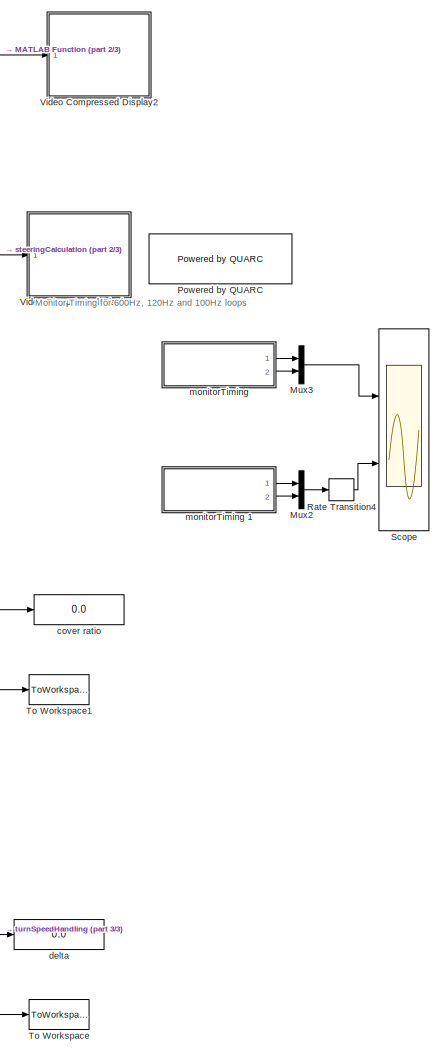
[diagram: root canvas - part 1/3, right side, full height]
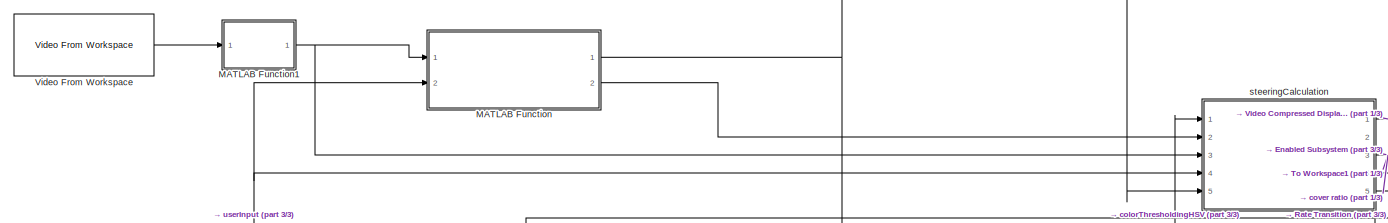
[diagram: root canvas - part 2/3, top center region]
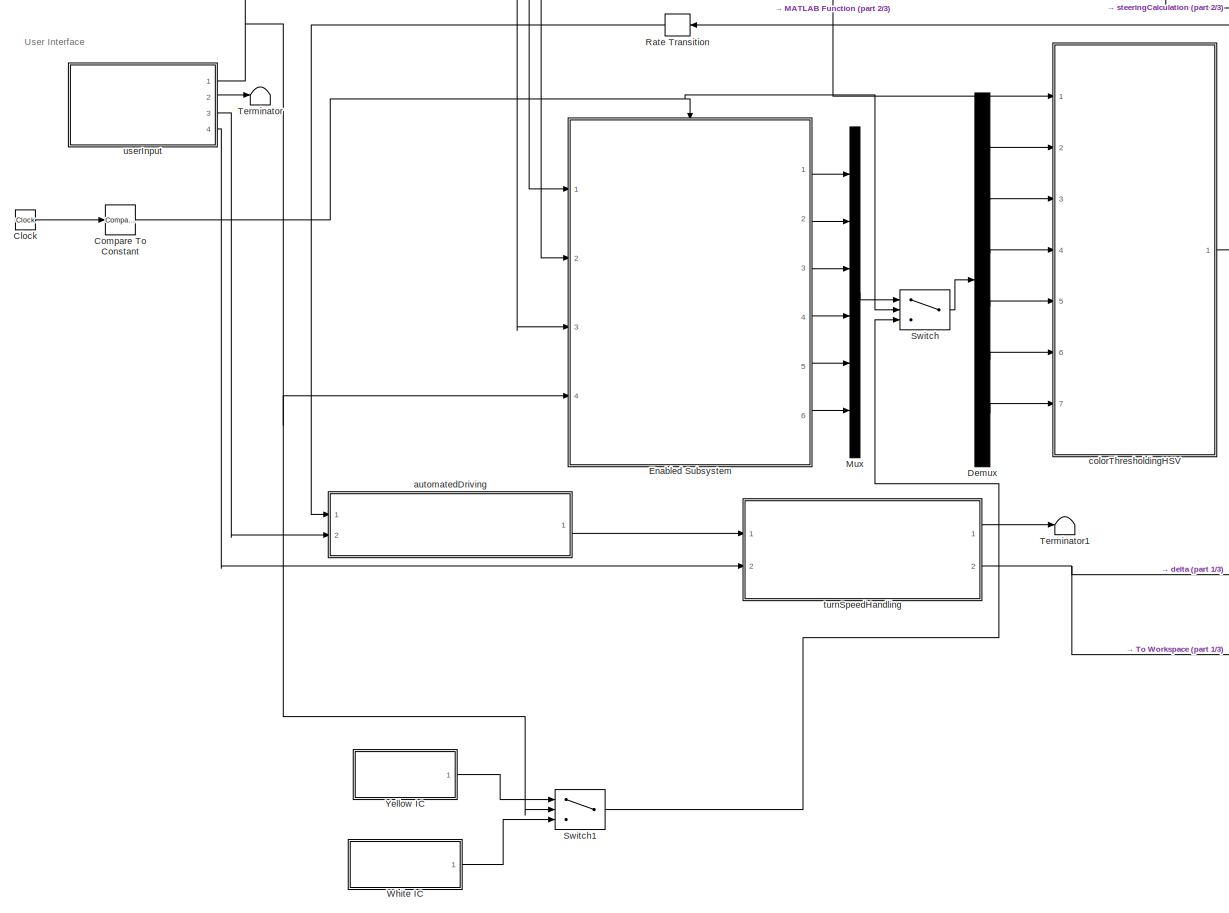
[diagram: root canvas - part 3/3, middle left region]
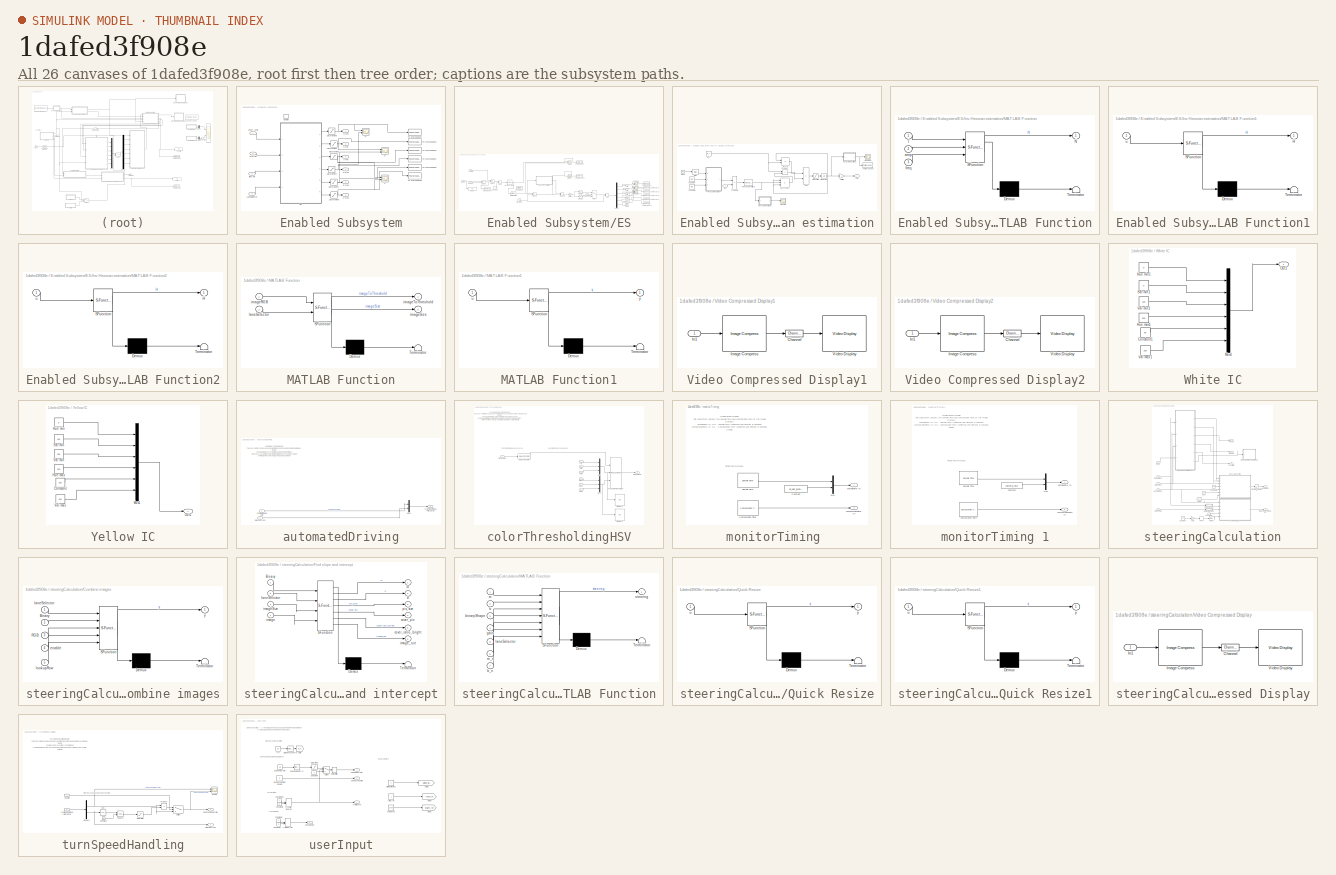
[diagram: thumbnail index - all 26 canvases of the model, root first then tree order]
MODEL slx_1dafed3f908e
KIND model
CONFIG AbsTol = auto
CONFIG EnableMultiTasking = off
CONFIG FixedStep = 1/120
CONFIG MaxStep = auto
CONFIG MinStep = auto
CONFIG RelTol = 1e-3
CONFIG SampleTimeConstraint = Unconstrained
CONFIG Solver = ode2
CONFIG SolverName = ode2
CONFIG StartTime = 0.0
CONFIG StopTime = 100
WORKSPACE source: mxarray member
WORKSPACE camera_rate: Simulink.Parameter (value not decoded)
WORKSPACE depth_rate: Simulink.Parameter (value not decoded)
BLOCK [Clock] Clock
BLOCK [Reference] Compare To Constant  REF=simulink/Logic and Bit
Operations/Compare
To Constant
  Ports = [1, 1]
  SourceBlock = simulink/Logic and Bit\nOperations/Compare\nTo Constant
  SourceProductBaseCode = SL
  SourceType = Compare To Constant
BLOCK [Demux] Demux
  Outputs = 6
  Ports = [1, 6]
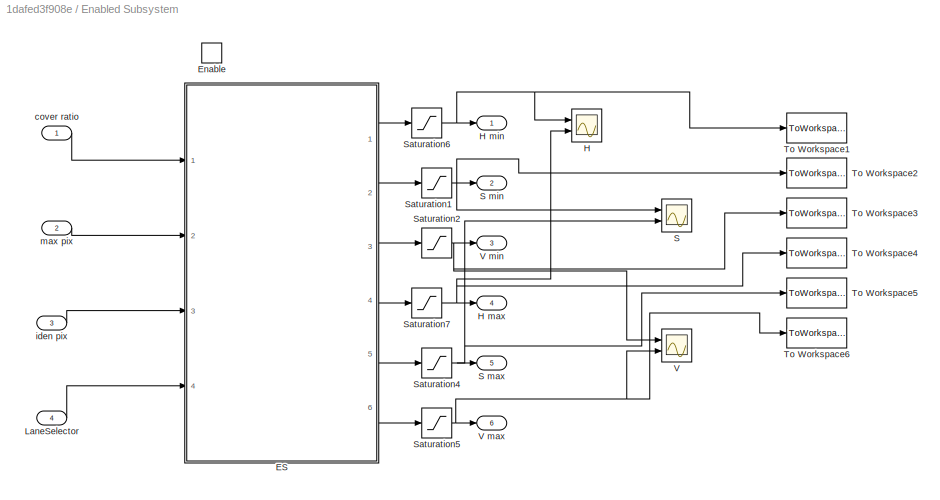
BLOCK [SubSystem] Enabled Subsystem
  Ports = [4, 6, 1]
  RequestExecContextInheritance = off
  TreatAsAtomicUnit = on
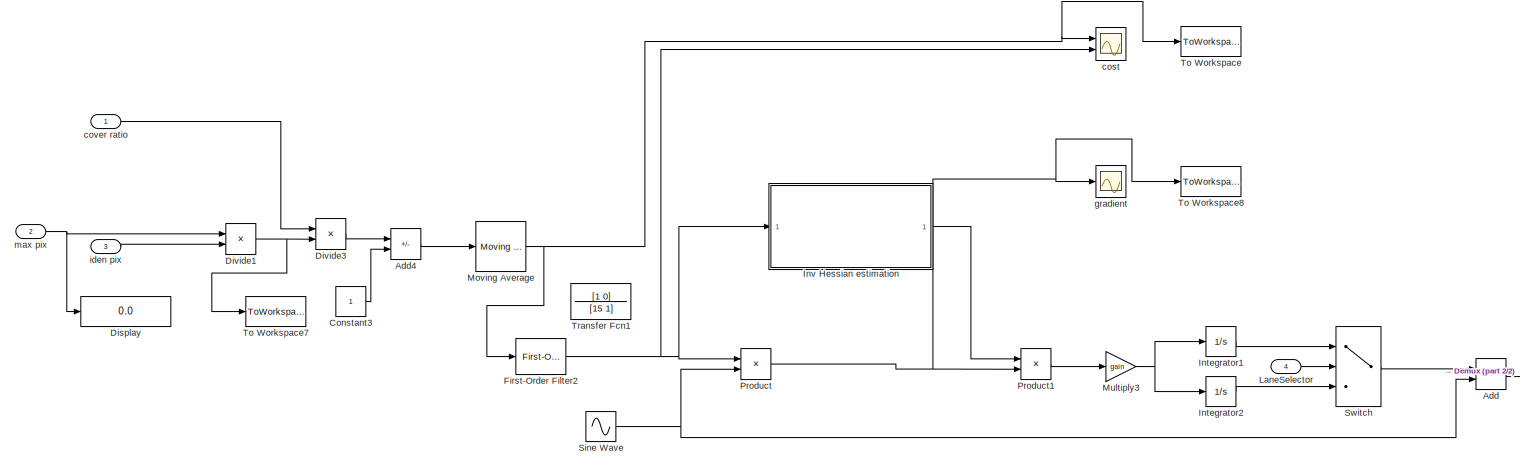
[diagram: Enabled Subsystem/ES - part 1/2, most of the canvas]
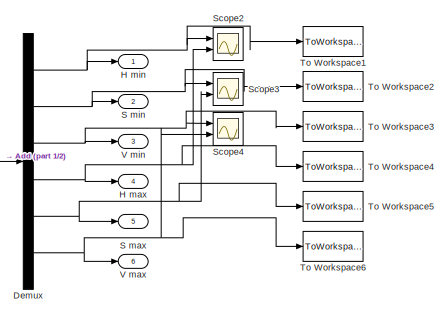
[diagram: Enabled Subsystem/ES - part 2/2, bottom right region]
BLOCK [SubSystem] Enabled Subsystem/ES
  Ports = [4, 6]
  RequestExecContextInheritance = off
BLOCK [Sum] Enabled Subsystem/ES/Add
  IconShape = rectangular
  Ports = [2, 1]
BLOCK [Sum] Enabled Subsystem/ES/Add4
  IconShape = rectangular
  Inputs = -+
  Ports = [2, 1]
BLOCK [Constant] Enabled Subsystem/ES/Constant3
BLOCK [Demux] Enabled Subsystem/ES/Demux
  Outputs = 6
  Ports = [1, 6]
BLOCK [Display] Enabled Subsystem/ES/Display
  Decimation = 1
  Ports = [1]
BLOCK [Product] Enabled Subsystem/ES/Divide1
  Inputs = /*
  Ports = [2, 1]
BLOCK [Product] Enabled Subsystem/ES/Divide3
  Inputs = **
  Ports = [2, 1]
BLOCK [Reference] Enabled Subsystem/ES/First-Order Filter2  REF=powerlib_meascontrol/Filters/First-Order
Filter
  Ports = [1, 1]
  SourceBlock = powerlib_meascontrol/Filters/First-Order\nFilter
  SourceProductBaseCode = PS
  SourceType = First-Order Filter
BLOCK [Outport] Enabled Subsystem/ES/H max
  Port = 4
  VectorParamsAs1DForOutWhenUnconnected = off
BLOCK [Outport] Enabled Subsystem/ES/H min
  VectorParamsAs1DForOutWhenUnconnected = off
BLOCK [Integrator] Enabled Subsystem/ES/Integrator1
  InitialCondition = [0;100;150;100;255;255]
  LowerSaturationLimit = 0
  Ports = [1, 1]
  UpperSaturationLimit = 255
BLOCK [Integrator] Enabled Subsystem/ES/Integrator2
  InitialCondition = [0;0;150;255;50;255]
  LowerSaturationLimit = 0
  Ports = [1, 1]
  UpperSaturationLimit = 255
BLOCK [SubSystem] Enabled Subsystem/ES/Inv Hessian estimation
  Ports = [1, 1]
  RequestExecContextInheritance = off
BLOCK [Sum] Enabled Subsystem/ES/Inv Hessian estimation/Add
  IconShape = rectangular
  Inputs = +-
  Ports = [2, 1]
BLOCK [Bias] Enabled Subsystem/ES/Inv Hessian estimation/Bias
  Bias = -15
  SaturateOnIntegerOverflow = off
BLOCK [Clock] Enabled Subsystem/ES/Inv Hessian estimation/Clock
  Decimation = 100
BLOCK [Constant] Enabled Subsystem/ES/Inv Hessian estimation/Constant
  Value = amp
BLOCK [Constant] Enabled Subsystem/ES/Inv Hessian estimation/Constant1
  Value = freq
BLOCK [Reference] Enabled Subsystem/ES/Inv Hessian estimation/First-Order Filter2  REF=powerlib_meascontrol/Filters/First-Order
Filter
  Ports = [1, 1]
  SourceBlock = powerlib_meascontrol/Filters/First-Order\nFilter
  SourceProductBaseCode = PS
  SourceType = First-Order Filter
BLOCK [Scope] Enabled Subsystem/ES/Inv Hessian estimation/Hessian
  Floating = off
  NumInputPorts = 1
  Ports = [1]
  ScopeSpecificationString = Simulink.scopes.TimeScopeBlockCfg('CurrentConfiguration', extmgr.ConfigurationSet(extmgr.Configuration('Core','General UI',true),extmgr.Configuration('Core','Source UI',true),extmgr.Configuration('Sources','WiredSimulink',true,'DataLoggingVariableName','ScopeData2'),extmgr.Configuration('Visuals','Time Domain',true,'SerializedDisplays',{struct('MinYLimReal','-0.86264','MaxYLimReal','0.20379','YLab...<+1720ch>
BLOCK [Scope] Enabled Subsystem/ES/Inv Hessian estimation/Hessian1
  Floating = off
  NumInputPorts = 1
  Ports = [1]
  ScopeSpecificationString = Simulink.scopes.TimeScopeBlockCfg('CurrentConfiguration', extmgr.ConfigurationSet(extmgr.Configuration('Core','General UI',true),extmgr.Configuration('Core','Source UI',true),extmgr.Configuration('Sources','WiredSimulink',true,'DataLoggingVariableName','ScopeData1'),extmgr.Configuration('Visuals','Time Domain',true,'SerializedDisplays',{struct('MinYLimReal','0.06838','MaxYLimReal','1.10351','YLabe...<+1715ch>
BLOCK [Inport] Enabled Subsystem/ES/Inv Hessian estimation/In1
BLOCK [Integrator] Enabled Subsystem/ES/Inv Hessian estimation/Integrator
  InitialCondition = IC
  Ports = [1, 1]
BLOCK [SubSystem] Enabled Subsystem/ES/Inv Hessian estimation/MATLAB Function
  ErrorFcn = Stateflow.Translate.translate
  PermitHierarchicalResolution = ExplicitOnly
  Ports = [3, 1]
  RequestExecContextInheritance = off
  SFBlockType = MATLAB Function
  TreatAsAtomicUnit = on
BLOCK [Demux] Enabled Subsystem/ES/Inv Hessian estimation/MATLAB Function/ Demux 
  Outputs = 1
  Ports = [1, 1]
BLOCK [S-Function] Enabled Subsystem/ES/Inv Hessian estimation/MATLAB Function/ SFunction 
  EnableBusSupport = on
  FunctionName = sf_sfun
  PortCounts = [3 2]
  Ports = [3, 2]
  SFcnIsStateOwnerBlock = off
  SFunctionDeploymentMode = off
  Tag = Stateflow S-Function 1
BLOCK [Terminator] Enabled Subsystem/ES/Inv Hessian estimation/MATLAB Function/ Terminator 
BLOCK [Outport] Enabled Subsystem/ES/Inv Hessian estimation/MATLAB Function/N
  VectorParamsAs1DForOutWhenUnconnected = off
BLOCK [Inport] Enabled Subsystem/ES/Inv Hessian estimation/MATLAB Function/amp
  Port = 2
BLOCK [Inport] Enabled Subsystem/ES/Inv Hessian estimation/MATLAB Function/freq
  Port = 3
BLOCK [Inport] Enabled Subsystem/ES/Inv Hessian estimation/MATLAB Function/t
BLOCK [SubSystem] Enabled Subsystem/ES/Inv Hessian estimation/MATLAB Function1
  ErrorFcn = Stateflow.Translate.translate
  PermitHierarchicalResolution = ExplicitOnly
  Ports = [1, 1]
  RequestExecContextInheritance = off
  SFBlockType = MATLAB Function
  TreatAsAtomicUnit = on
BLOCK [Demux] Enabled Subsystem/ES/Inv Hessian estimation/MATLAB Function1/ Demux 
  Outputs = 1
  Ports = [1, 1]
BLOCK [S-Function] Enabled Subsystem/ES/Inv Hessian estimation/MATLAB Function1/ SFunction 
  EnableBusSupport = on
  FunctionName = sf_sfun
  PortCounts = [1 2]
  Ports = [1, 2]
  SFcnIsStateOwnerBlock = off
  SFunctionDeploymentMode = off
  Tag = Stateflow S-Function 3
BLOCK [Terminator] Enabled Subsystem/ES/Inv Hessian estimation/MATLAB Function1/ Terminator 
BLOCK [Outport] Enabled Subsystem/ES/Inv Hessian estimation/MATLAB Function1/H
  VectorParamsAs1DForOutWhenUnconnected = off
BLOCK [Inport] Enabled Subsystem/ES/Inv Hessian estimation/MATLAB Function1/u
BLOCK [SubSystem] Enabled Subsystem/ES/Inv Hessian estimation/MATLAB Function2
  ErrorFcn = Stateflow.Translate.translate
  PermitHierarchicalResolution = ExplicitOnly
  Ports = [1, 1]
  RequestExecContextInheritance = off
  SFBlockType = MATLAB Function
  TreatAsAtomicUnit = on
BLOCK [Demux] Enabled Subsystem/ES/Inv Hessian estimation/MATLAB Function2/ Demux 
  Outputs = 1
  Ports = [1, 1]
BLOCK [S-Function] Enabled Subsystem/ES/Inv Hessian estimation/MATLAB Function2/ SFunction 
  EnableBusSupport = on
  FunctionName = sf_sfun
  PortCounts = [1 2]
  Ports = [1, 2]
  SFcnIsStateOwnerBlock = off
  SFunctionDeploymentMode = off
  Tag = Stateflow S-Function 8
BLOCK [Terminator] Enabled Subsystem/ES/Inv Hessian estimation/MATLAB Function2/ Terminator 
BLOCK [Outport] Enabled Subsystem/ES/Inv Hessian estimation/MATLAB Function2/H
  VectorParamsAs1DForOutWhenUnconnected = off
BLOCK [Inport] Enabled Subsystem/ES/Inv Hessian estimation/MATLAB Function2/u
BLOCK [Gain] Enabled Subsystem/ES/Inv Hessian estimation/Multiply
  Gain = -1
BLOCK [Outport] Enabled Subsystem/ES/Inv Hessian estimation/Out1
  VectorParamsAs1DForOutWhenUnconnected = off
BLOCK [Product] Enabled Subsystem/ES/Inv Hessian estimation/Product
  Ports = [2, 1]
BLOCK [Product] Enabled Subsystem/ES/Inv Hessian estimation/Product2
  Ports = [2, 1]
BLOCK [Saturate] Enabled Subsystem/ES/Inv Hessian estimation/Saturation
  LowerLimit = -10000
  UpperLimit = 10000
BLOCK [ToWorkspace] Enabled Subsystem/ES/Inv Hessian estimation/To Workspace
  FixptAsFi = on
  MaxDataPoints = inf
  Ports = [1]
  SampleTime = -1
  SaveFormat = Timeseries
  VariableName = Hessian
BLOCK [Constant] Enabled Subsystem/ES/Inv Hessian estimation/w_r 
  Value = w_r
BLOCK [Product] Enabled Subsystem/ES/Inv Hessian estimation/w_r*T
  Ports = [2, 1]
BLOCK [Product] Enabled Subsystem/ES/Inv Hessian estimation/w_r*T*H*T
  Inputs = 3
  Multiplication = Matrix(*)
  Ports = [3, 1]
BLOCK [Inport] Enabled Subsystem/ES/LaneSelector
  Port = 4
BLOCK [Reference] Enabled Subsystem/ES/Moving Average  REF=dspstat3/Moving
Average
  Ports = [1, 1]
  SourceBlock = dspstat3/Moving\nAverage
  SourceProductBaseCode = DS
  SourceType = dsp.simulink.MovingAverage
BLOCK [Gain] Enabled Subsystem/ES/Multiply3
  Gain = gain
BLOCK [Product] Enabled Subsystem/ES/Product
  Ports = [2, 1]
BLOCK [Product] Enabled Subsystem/ES/Product1
  Multiplication = Matrix(*)
  Ports = [2, 1]
BLOCK [Outport] Enabled Subsystem/ES/S max
  Port = 5
  VectorParamsAs1DForOutWhenUnconnected = off
BLOCK [Outport] Enabled Subsystem/ES/S min
  Port = 2
  VectorParamsAs1DForOutWhenUnconnected = off
BLOCK [Scope] Enabled Subsystem/ES/Scope2
  Floating = off
  NumInputPorts = 2
  Ports = [2]
  ScopeSpecificationString = Simulink.scopes.TimeScopeBlockCfg('CurrentConfiguration', extmgr.ConfigurationSet(extmgr.Configuration('Core','General UI',true),extmgr.Configuration('Core','Source UI',true),extmgr.Configuration('Sources','WiredSimulink',true,'DataLoggingVariableName','ScopeData1'),extmgr.Configuration('Visuals','Time Domain',true,'SerializedDisplays',{struct('MinYLimReal','-1947.39724','MaxYLimReal','853.01055',...<+1539ch>
BLOCK [Scope] Enabled Subsystem/ES/Scope3
  Floating = off
  NumInputPorts = 2
  Ports = [2]
  ScopeSpecificationString = Simulink.scopes.TimeScopeBlockCfg('CurrentConfiguration', extmgr.ConfigurationSet(extmgr.Configuration('Core','General UI',true),extmgr.Configuration('Core','Source UI',true),extmgr.Configuration('Sources','WiredSimulink',true,'DataLoggingVariableName','ScopeData2'),extmgr.Configuration('Visuals','Time Domain',true,'SerializedDisplays',{struct('MinYLimReal','-646.49377','MaxYLimReal','897.72191','...<+1489ch>
BLOCK [Scope] Enabled Subsystem/ES/Scope4
  Floating = off
  NumInputPorts = 2
  Ports = [2]
  ScopeSpecificationString = Simulink.scopes.TimeScopeBlockCfg('CurrentConfiguration', extmgr.ConfigurationSet(extmgr.Configuration('Core','General UI',true),extmgr.Configuration('Core','Source UI',true),extmgr.Configuration('Sources','WiredSimulink',true,'DataLoggingVariableName','ScopeData3'),extmgr.Configuration('Visuals','Time Domain',true,'SerializedDisplays',{struct('MinYLimReal','113.66565','MaxYLimReal','331.58352','Y...<+1488ch>
BLOCK [Sin] Enabled Subsystem/ES/Sine Wave
  Amplitude = amp
  Frequency = freq
  Ports = [0, 1]
  SampleTime = 0
BLOCK [Switch] Enabled Subsystem/ES/Switch
  Criteria = u2 > Threshold
  InputSameDT = off
  SaturateOnIntegerOverflow = off
BLOCK [ToWorkspace] Enabled Subsystem/ES/To Workspace
  FixptAsFi = on
  MaxDataPoints = inf
  Ports = [1]
  SampleTime = -1
  SaveFormat = Timeseries
  VariableName = cost_fcn
BLOCK [ToWorkspace] Enabled Subsystem/ES/To Workspace1
  Commented = on
  FixptAsFi = on
  MaxDataPoints = inf
  Ports = [1]
  SampleTime = -1
  Save2DSignal = 2-D array (concatenate along first dimension)
  VariableName = H_min
BLOCK [ToWorkspace] Enabled Subsystem/ES/To Workspace2
  Commented = on
  FixptAsFi = on
  MaxDataPoints = inf
  Ports = [1]
  SampleTime = -1
  Save2DSignal = 2-D array (concatenate along first dimension)
  VariableName = S_min
BLOCK [ToWorkspace] Enabled Subsystem/ES/To Workspace3
  Commented = on
  FixptAsFi = on
  MaxDataPoints = inf
  Ports = [1]
  SampleTime = -1
  Save2DSignal = 2-D array (concatenate along first dimension)
  VariableName = V_min
BLOCK [ToWorkspace] Enabled Subsystem/ES/To Workspace4
  Commented = on
  FixptAsFi = on
  MaxDataPoints = inf
  Ports = [1]
  SampleTime = -1
  Save2DSignal = 2-D array (concatenate along first dimension)
  VariableName = H_max
BLOCK [ToWorkspace] Enabled Subsystem/ES/To Workspace5
  Commented = on
  FixptAsFi = on
  MaxDataPoints = inf
  Ports = [1]
  SampleTime = -1
  Save2DSignal = 2-D array (concatenate along first dimension)
  VariableName = S_max
BLOCK [ToWorkspace] Enabled Subsystem/ES/To Workspace6
  Commented = on
  FixptAsFi = on
  MaxDataPoints = inf
  Ports = [1]
  SampleTime = -1
  Save2DSignal = 2-D array (concatenate along first dimension)
  VariableName = V_max
BLOCK [ToWorkspace] Enabled Subsystem/ES/To Workspace7
  FixptAsFi = on
  MaxDataPoints = inf
  Ports = [1]
  SampleTime = -1
  SaveFormat = Structure With Time
  VariableName = pix_ratio
BLOCK [ToWorkspace] Enabled Subsystem/ES/To Workspace8
  FixptAsFi = on
  MaxDataPoints = inf
  Ports = [1]
  SampleTime = -1
  SaveFormat = Timeseries
  VariableName = gradient
BLOCK [TransferFcn] Enabled Subsystem/ES/Transfer Fcn1
  Denominator = [15 1]
  Numerator = [1 0]
BLOCK [Outport] Enabled Subsystem/ES/V max
  Port = 6
  VectorParamsAs1DForOutWhenUnconnected = off
BLOCK [Outport] Enabled Subsystem/ES/V min
  Port = 3
  VectorParamsAs1DForOutWhenUnconnected = off
BLOCK [Scope] Enabled Subsystem/ES/cost
  Floating = off
  NumInputPorts = 2
  Ports = [2]
  ScopeSpecificationString = Simulink.scopes.TimeScopeBlockCfg('CurrentConfiguration', extmgr.ConfigurationSet(extmgr.Configuration('Core','General UI',true),extmgr.Configuration('Core','Source UI',true),extmgr.Configuration('Sources','WiredSimulink',true,'DataLoggingVariableName','ScopeData1'),extmgr.Configuration('Visuals','Time Domain',true,'SerializedDisplays',{struct('MinYLimReal','-0.12031','MaxYLimReal','1.12448','YLab...<+1449ch>
BLOCK [Inport] Enabled Subsystem/ES/cover ratio 
BLOCK [Scope] Enabled Subsystem/ES/gradient
  Floating = off
  NumInputPorts = 1
  Ports = [1]
  ScopeSpecificationString = Simulink.scopes.TimeScopeBlockCfg('CurrentConfiguration', extmgr.ConfigurationSet(extmgr.Configuration('Core','General UI',true),extmgr.Configuration('Core','Source UI',true),extmgr.Configuration('Sources','WiredSimulink',true,'DataLoggingVariableName','ScopeData3'),extmgr.Configuration('Visuals','Time Domain',true,'SerializedDisplays',{struct('MinYLimReal','-1.52251','MaxYLimReal','2.79316','YLab...<+1618ch>
BLOCK [Inport] Enabled Subsystem/ES/iden pix
  Port = 3
BLOCK [Inport] Enabled Subsystem/ES/max pix 
  Port = 2
BLOCK [EnablePort] Enabled Subsystem/Enable
  Ports = []
BLOCK [Scope] Enabled Subsystem/H
  Floating = off
  NumInputPorts = 2
  Ports = [2]
  ScopeSpecificationString = Simulink.scopes.TimeScopeBlockCfg('CurrentConfiguration', extmgr.ConfigurationSet(extmgr.Configuration('Core','General UI',true),extmgr.Configuration('Core','Source UI',true),extmgr.Configuration('Sources','WiredSimulink',true,'DataLoggingVariableName','ScopeData4'),extmgr.Configuration('Visuals','Time Domain',true,'SerializedDisplays',{struct('MinYLimReal','-31.875','MaxYLimReal','286.875','YLabe...<+1436ch>
BLOCK [Outport] Enabled Subsystem/H max
  Port = 4
  VectorParamsAs1DForOutWhenUnconnected = off
BLOCK [Outport] Enabled Subsystem/H min
  VectorParamsAs1DForOutWhenUnconnected = off
BLOCK [Inport] Enabled Subsystem/LaneSelector
  Port = 4
BLOCK [Scope] Enabled Subsystem/S
  Floating = off
  NumInputPorts = 2
  Ports = [2]
  ScopeSpecificationString = Simulink.scopes.TimeScopeBlockCfg('CurrentConfiguration', extmgr.ConfigurationSet(extmgr.Configuration('Core','General UI',true),extmgr.Configuration('Core','Source UI',true),extmgr.Configuration('Sources','WiredSimulink',true,'DataLoggingVariableName','ScopeData5'),extmgr.Configuration('Visuals','Time Domain',true,'SerializedDisplays',{struct('MinYLimReal','-31.875','MaxYLimReal','286.875','YLabe...<+1483ch>
BLOCK [Outport] Enabled Subsystem/S max
  Port = 5
  VectorParamsAs1DForOutWhenUnconnected = off
BLOCK [Outport] Enabled Subsystem/S min
  Port = 2
  VectorParamsAs1DForOutWhenUnconnected = off
BLOCK [Saturate] Enabled Subsystem/Saturation1
  LowerLimit = 0
  UpperLimit = 255
BLOCK [Saturate] Enabled Subsystem/Saturation2
  LowerLimit = 0
  UpperLimit = 255
BLOCK [Saturate] Enabled Subsystem/Saturation4
  LowerLimit = 0
  UpperLimit = 255
BLOCK [Saturate] Enabled Subsystem/Saturation5
  LowerLimit = 0
  UpperLimit = 255
BLOCK [Saturate] Enabled Subsystem/Saturation6
  LowerLimit = 0
  UpperLimit = 255
BLOCK [Saturate] Enabled Subsystem/Saturation7
  LowerLimit = 0
  UpperLimit = 255
BLOCK [ToWorkspace] Enabled Subsystem/To Workspace1
  FixptAsFi = on
  MaxDataPoints = inf
  Ports = [1]
  SampleTime = -1
  Save2DSignal = 2-D array (concatenate along first dimension)
  SaveFormat = Timeseries
  VariableName = H_min
BLOCK [ToWorkspace] Enabled Subsystem/To Workspace2
  FixptAsFi = on
  MaxDataPoints = inf
  Ports = [1]
  SampleTime = -1
  Save2DSignal = 2-D array (concatenate along first dimension)
  SaveFormat = Timeseries
  VariableName = S_min
BLOCK [ToWorkspace] Enabled Subsystem/To Workspace3
  FixptAsFi = on
  MaxDataPoints = inf
  Ports = [1]
  SampleTime = -1
  Save2DSignal = 2-D array (concatenate along first dimension)
  SaveFormat = Timeseries
  VariableName = V_min
BLOCK [ToWorkspace] Enabled Subsystem/To Workspace4
  FixptAsFi = on
  MaxDataPoints = inf
  Ports = [1]
  SampleTime = -1
  Save2DSignal = 2-D array (concatenate along first dimension)
  SaveFormat = Timeseries
  VariableName = H_max
BLOCK [ToWorkspace] Enabled Subsystem/To Workspace5
  FixptAsFi = on
  MaxDataPoints = inf
  Ports = [1]
  SampleTime = -1
  Save2DSignal = 2-D array (concatenate along first dimension)
  SaveFormat = Timeseries
  VariableName = S_max
BLOCK [ToWorkspace] Enabled Subsystem/To Workspace6
  FixptAsFi = on
  MaxDataPoints = inf
  Ports = [1]
  SampleTime = -1
  Save2DSignal = 2-D array (concatenate along first dimension)
  SaveFormat = Timeseries
  VariableName = V_max
BLOCK [Scope] Enabled Subsystem/V
  Floating = off
  NumInputPorts = 2
  Ports = [2]
  ScopeSpecificationString = Simulink.scopes.TimeScopeBlockCfg('CurrentConfiguration', extmgr.ConfigurationSet(extmgr.Configuration('Core','General UI',true),extmgr.Configuration('Core','Source UI',true),extmgr.Configuration('Sources','WiredSimulink',true,'DataLoggingVariableName','ScopeData6'),extmgr.Configuration('Visuals','Time Domain',true,'SerializedDisplays',{struct('MinYLimReal','84.35967','MaxYLimReal','273.96004','YL...<+1493ch>
BLOCK [Outport] Enabled Subsystem/V max
  Port = 6
  VectorParamsAs1DForOutWhenUnconnected = off
BLOCK [Outport] Enabled Subsystem/V min
  Port = 3
  VectorParamsAs1DForOutWhenUnconnected = off
BLOCK [Inport] Enabled Subsystem/cover ratio
BLOCK [Inport] Enabled Subsystem/iden pix
  Port = 3
BLOCK [Inport] Enabled Subsystem/max pix
  Port = 2
BLOCK [SubSystem] MATLAB Function
  ErrorFcn = Stateflow.Translate.translate
  PermitHierarchicalResolution = ExplicitOnly
  Ports = [2, 2]
  RequestExecContextInheritance = off
  SFBlockType = MATLAB Function
  TreatAsAtomicUnit = on
BLOCK [Demux] MATLAB Function/ Demux 
  Outputs = 1
  Ports = [1, 1]
BLOCK [S-Function] MATLAB Function/ SFunction 
  EnableBusSupport = on
  FunctionName = sf_sfun
  PortCounts = [2 3]
  Ports = [2, 3]
  SFcnIsStateOwnerBlock = off
  SFunctionDeploymentMode = off
  Tag = Stateflow S-Function 11
BLOCK [Terminator] MATLAB Function/ Terminator 
BLOCK [Inport] MATLAB Function/imageRGB
BLOCK [Outport] MATLAB Function/imageSize
  Port = 2
  VectorParamsAs1DForOutWhenUnconnected = off
BLOCK [Outport] MATLAB Function/imageToThreshold
  VectorParamsAs1DForOutWhenUnconnected = off
BLOCK [Inport] MATLAB Function/laneSelector
  Port = 2
BLOCK [SubSystem] MATLAB Function1
  ErrorFcn = Stateflow.Translate.translate
  PermitHierarchicalResolution = ExplicitOnly
  Ports = [1, 1]
  RequestExecContextInheritance = off
  SFBlockType = MATLAB Function
  TreatAsAtomicUnit = on
BLOCK [Demux] MATLAB Function1/ Demux 
  Outputs = 1
  Ports = [1, 1]
BLOCK [S-Function] MATLAB Function1/ SFunction 
  EnableBusSupport = on
  FunctionName = sf_sfun
  PortCounts = [1 2]
  Ports = [1, 2]
  SFcnIsStateOwnerBlock = off
  SFunctionDeploymentMode = off
  Tag = Stateflow S-Function 7
BLOCK [Terminator] MATLAB Function1/ Terminator 
BLOCK [Inport] MATLAB Function1/u
BLOCK [Outport] MATLAB Function1/y
  VectorParamsAs1DForOutWhenUnconnected = off
BLOCK [Mux] Mux
  DisplayOption = bar
  Inputs = 6
  Ports = [6, 1]
BLOCK [Mux] Mux2
  DisplayOption = bar
  Inputs = 2
  Ports = [2, 1]
BLOCK [Mux] Mux3
  DisplayOption = bar
  Inputs = 2
  Ports = [2, 1]
BLOCK [Reference] Powered by QUARC  REF=quarc_library/Logos/Powered by QUARC
  Ports = []
  SourceBlock = quarc_library/Logos/Powered by QUARC
  SourceProductName = QUARC Targets
  SourceType = Powered by QUARC
BLOCK [RateTransition] Rate Transition
BLOCK [RateTransition] Rate Transition4
  NameLocation = top
BLOCK [Scope] Scope
  Floating = off
  NumInputPorts = 2
  Ports = [2]
  ScopeSpecificationString = Simulink.scopes.TimeScopeBlockCfg('CurrentConfiguration', extmgr.ConfigurationSet(extmgr.Configuration('Core','General UI',true),extmgr.Configuration('Core','Source UI',true),extmgr.Configuration('Sources','WiredSimulink',true,'DataLoggingVariableName','ScopeData1'),extmgr.Configuration('Visuals','Time Domain',true,'SerializedDisplays',{struct('MinYLimReal','-0.00084','MaxYLimReal','0.00516','YLab...<+2757ch>
BLOCK [Switch] Switch
  Criteria = u2 > Threshold
  InputSameDT = off
  SaturateOnIntegerOverflow = off
BLOCK [Switch] Switch1
  Criteria = u2 > Threshold
  InputSameDT = off
  SaturateOnIntegerOverflow = off
BLOCK [Terminator] Terminator
BLOCK [Terminator] Terminator1
BLOCK [ToWorkspace] To Workspace
  FixptAsFi = on
  MaxDataPoints = inf
  Ports = [1]
  SampleTime = -1
  SaveFormat = Structure With Time
  VariableName = delta
BLOCK [ToWorkspace] To Workspace1
  FixptAsFi = on
  MaxDataPoints = inf
  Ports = [1]
  SampleTime = -1
  Save2DSignal = 2-D array (concatenate along first dimension)
  SaveFormat = Structure With Time
  VariableName = cover_ratio
BLOCK [SubSystem] Video Compressed Display1
  CopyFcn = set_param(gcbh, 'UserData', gcb);\nset_param(gcbh, 'LinkStatus', 'none');
  LoadFcn = set_param(gcbh, 'UserData', gcb);
  NameChangeFcn = video_display_show([get_param(gcbh, 'UserData'), '/Video Display'], 'rename', [gcb, '/Video Display']);\nvideo_display_show([gcb, '/Video Display'], 'add', gcb);\nset_param(gcbh, 'UserData', gcb);  <repeated x3 — deduplicated; at blocks: Video Compressed Display1, Video Compressed Display2, Video Compressed Display>
  OpenFcn = video_display_show([gcb, '/Video Display'], 'show', gcb);
  Ports = [1]
  PreDeleteFcn = video_display_show([gcb, '/Video Display'], 'delete');
  RequestExecContextInheritance = off
  StartFcn = video_display_show([gcb, '/Video Display'], 'add', gcb);
  UndoDeleteFcn = set_param(gcbh, 'UserData', gcb);
BLOCK [Reference] Video Compressed Display1/Channel  REF=quarc_library/Signal Routing/Channel
  Ports = [1, 1]
  SourceBlock = quarc_library/Signal Routing/Channel
  SourceProductName = QUARC Targets
  SourceType = Channel
BLOCK [Reference] Video Compressed Display1/Image Compress  REF=quarc_library/Image Processing/Generic/Image Compress
  AttributesFormatString = (%<algorithm>)
  Ports = [1, 1]
  SourceBlock = quarc_library/Image Processing/Generic/Image Compress
  SourceProductName = QUARC Targets
  SourceType = Image Compress
BLOCK [Inport] Video Compressed Display1/In1
BLOCK [Reference] Video Compressed Display1/Video Display  REF=quarc_library/Multimedia/Video Display
  Ports = [1]
  SourceBlock = quarc_library/Multimedia/Video Display
  SourceProductName = QUARC Targets
  SourceType = Video Display
  Tag = ES_video_newton/Video Compressed\nDisplay1/Video Display
  UserDataPersistent = on
BLOCK [SubSystem] Video Compressed Display2
  CopyFcn = set_param(gcbh, 'UserData', gcb);\nset_param(gcbh, 'LinkStatus', 'none');
  LoadFcn = set_param(gcbh, 'UserData', gcb);
  OpenFcn = video_display_show([gcb, '/Video Display'], 'show', gcb);
  Ports = [1]
  PreDeleteFcn = video_display_show([gcb, '/Video Display'], 'delete');
  RequestExecContextInheritance = off
  StartFcn = video_display_show([gcb, '/Video Display'], 'add', gcb);
  UndoDeleteFcn = set_param(gcbh, 'UserData', gcb);
BLOCK [Reference] Video Compressed Display2/Channel  REF=quarc_library/Signal Routing/Channel
  Ports = [1, 1]
  SourceBlock = quarc_library/Signal Routing/Channel
  SourceProductName = QUARC Targets
  SourceType = Channel
BLOCK [Reference] Video Compressed Display2/Image Compress  REF=quarc_library/Image Processing/Generic/Image Compress
  AttributesFormatString = (%<algorithm>)
  Ports = [1, 1]
  SourceBlock = quarc_library/Image Processing/Generic/Image Compress
  SourceProductName = QUARC Targets
  SourceType = Image Compress
BLOCK [Inport] Video Compressed Display2/In1
BLOCK [Reference] Video Compressed Display2/Video Display  REF=quarc_library/Multimedia/Video Display
  Ports = [1]
  SourceBlock = quarc_library/Multimedia/Video Display
  SourceProductName = QUARC Targets
  SourceType = Video Display
  Tag = ES_video_newton/Video Compressed\nDisplay2/Video Display
  UserDataPersistent = on
BLOCK [Reference] Video From Workspace  REF=visionsources/Video From Workspace
  Ports = [0, 1]
  SourceBlock = visionsources/Video From Workspace
  SourceProductBaseCode = VP
  SourceType = Video From Workspace
BLOCK [SubSystem] White IC
  Ports = [0, 1]
  RequestExecContextInheritance = off
BLOCK [Constant] White IC/Constant1
  Value = 50
BLOCK [Constant] White IC/Hue max1
  Value = 255
BLOCK [Constant] White IC/Hue min1
  Value = 0
BLOCK [Mux] White IC/Mux4
  DisplayOption = bar
  Inputs = 6
  Ports = [6, 1]
BLOCK [Outport] White IC/Out1
  VectorParamsAs1DForOutWhenUnconnected = off
BLOCK [Constant] White IC/Sat min1
  Value = 0
BLOCK [Constant] White IC/Val max 1
  Value = 255
BLOCK [Constant] White IC/Val min1
  Value = 150
BLOCK [SubSystem] Yellow IC
  Ports = [0, 1]
  RequestExecContextInheritance = off
BLOCK [Constant] Yellow IC/Constant
  Value = 255
BLOCK [Constant] Yellow IC/Hue max
  Value = 100
BLOCK [Constant] Yellow IC/Hue min
  Value = 0
BLOCK [Mux] Yellow IC/Mux1
  DisplayOption = bar
  Inputs = 6
  Ports = [6, 1]
BLOCK [Outport] Yellow IC/Out1
  VectorParamsAs1DForOutWhenUnconnected = off
BLOCK [Constant] Yellow IC/Sat min
  Value = 100
BLOCK [Constant] Yellow IC/Val max 
  Value = 255
BLOCK [Constant] Yellow IC/Val min
  Value = 150
BLOCK [SubSystem] automatedDriving
  Ports = [2, 1]
  RequestExecContextInheritance = off
BLOCK [Mux] automatedDriving/Mux1
  DisplayOption = bar
  Inputs = 2
  Ports = [2, 1]
BLOCK [Inport] automatedDriving/nominalSpeed (m//s)
  Port = 2
BLOCK [Inport] automatedDriving/steering (rad)
BLOCK [Outport] automatedDriving/systemCommand (m//s, rad) [2]
  VectorParamsAs1DForOutWhenUnconnected = off
BLOCK [SubSystem] colorThresholdingHSV
  NameLocation = top
  Ports = [7, 1]
  RequestExecContextInheritance = off
BLOCK [Display] colorThresholdingHSV/Display1
  Decimation = 1
  Ports = [1]
BLOCK [Display] colorThresholdingHSV/Display2
  Decimation = 1
  Ports = [1]
BLOCK [Inport] colorThresholdingHSV/H max
  Port = 5
BLOCK [Inport] colorThresholdingHSV/H min
  Port = 2
BLOCK [Reference] colorThresholdingHSV/HSV Color Thresholding  REF=quarc_library/Image Processing/Generic/Image Compare
  Ports = [3, 1]
  SourceBlock = quarc_library/Image Processing/Generic/Image Compare
  SourceProductName = QUARC Targets
  SourceType = Image Compare
BLOCK [Reference] colorThresholdingHSV/Image Transform  REF=quarc_library/Image Processing/Generic/Image Transform
  AttributesFormatString = (%<algorithm>)
  NameLocation = top
  Ports = [1, 1]
  SourceBlock = quarc_library/Image Processing/Generic/Image Transform
  SourceProductName = QUARC Targets
  SourceType = Image Transform
BLOCK [Mux] colorThresholdingHSV/Mux
  DisplayOption = bar
  Inputs = 3
  Ports = [3, 1]
BLOCK [Mux] colorThresholdingHSV/Mux1
  DisplayOption = bar
  Inputs = 3
  Ports = [3, 1]
BLOCK [Inport] colorThresholdingHSV/S max
  Port = 6
BLOCK [Inport] colorThresholdingHSV/S min
  Port = 3
BLOCK [Inport] colorThresholdingHSV/V max
  Port = 7
BLOCK [Inport] colorThresholdingHSV/V min
  Port = 4
BLOCK [Outport] colorThresholdingHSV/imageBinary
  VectorParamsAs1DForOutWhenUnconnected = off
BLOCK [Inport] colorThresholdingHSV/imageRGB
BLOCK [Display] cover ratio
  Decimation = 1
  Ports = [1]
BLOCK [Display] delta 
  Decimation = 1
  Ports = [1]
BLOCK [SubSystem] monitorTiming 
  Ports = [0, 2]
  RequestExecContextInheritance = off
BLOCK [Reference] monitorTiming /Computation Time  REF=quarc_library/Sources/Time/Computation Time
  Ports = [0, 1]
  SourceBlock = quarc_library/Sources/Time/Computation Time
  SourceProductName = QUARC Targets
  SourceType = Computation Time
BLOCK [Constant] monitorTiming /Constant
  SampleTime = -1
  Value = qc_get_step_size
BLOCK [Mux] monitorTiming /Mux
  DisplayOption = bar
  Inputs = 2
  Ports = [2, 1]
BLOCK [Reference] monitorTiming /Sample Time  REF=quarc_library/Sources/Time/Sample Time
  Ports = [0, 1]
  Priority = -99
  SourceBlock = quarc_library/Sources/Time/Sample Time
  SourceProductName = QUARC Targets
  SourceType = Sample Time
BLOCK [Outport] monitorTiming /computationTime (s)
  Port = 2
  VectorParamsAs1DForOutWhenUnconnected = off
BLOCK [Outport] monitorTiming /sampleTime (s)
  VectorParamsAs1DForOutWhenUnconnected = off
BLOCK [SubSystem] monitorTiming 1
  Ports = [0, 2]
  RequestExecContextInheritance = off
BLOCK [Reference] monitorTiming 1/Computation Time  REF=quarc_library/Sources/Time/Computation Time
  Ports = [0, 1]
  SourceBlock = quarc_library/Sources/Time/Computation Time
  SourceProductName = QUARC Targets
  SourceType = Computation Time
BLOCK [Constant] monitorTiming 1/Constant
  SampleTime = camera_rate
  Value = camera_rate
BLOCK [Mux] monitorTiming 1/Mux
  DisplayOption = bar
  Inputs = 2
  Ports = [2, 1]
BLOCK [Reference] monitorTiming 1/Sample Time  REF=quarc_library/Sources/Time/Sample Time
  Ports = [0, 1]
  Priority = -99
  SourceBlock = quarc_library/Sources/Time/Sample Time
  SourceProductName = QUARC Targets
  SourceType = Sample Time
BLOCK [Outport] monitorTiming 1/computationTime (s)
  Port = 2
  VectorParamsAs1DForOutWhenUnconnected = off
BLOCK [Outport] monitorTiming 1/sampleTime (s)
  VectorParamsAs1DForOutWhenUnconnected = off
BLOCK [SubSystem] steeringCalculation
  NameLocation = top
  Ports = [5, 5]
  RequestExecContextInheritance = off
BLOCK [Bias] steeringCalculation/Bias
  Bias = 1
  SaturateOnIntegerOverflow = off
BLOCK [SubSystem] steeringCalculation/Combine images
  ErrorFcn = Stateflow.Translate.translate
  PermitHierarchicalResolution = ExplicitOnly
  Ports = [5, 1]
  RequestExecContextInheritance = off
  SFBlockType = MATLAB Function
  TreatAsAtomicUnit = on
BLOCK [Demux] steeringCalculation/Combine images/ Demux 
  Outputs = 1
  Ports = [1, 1]
BLOCK [S-Function] steeringCalculation/Combine images/ SFunction 
  EnableBusSupport = on
  FunctionName = sf_sfun
  PortCounts = [5 2]
  Ports = [5, 2]
  SFcnIsStateOwnerBlock = off
  SFunctionDeploymentMode = off
  Tag = Stateflow S-Function 6
BLOCK [Terminator] steeringCalculation/Combine images/ Terminator 
BLOCK [Inport] steeringCalculation/Combine images/Binary
  Port = 2
BLOCK [Inport] steeringCalculation/Combine images/RGB
  Port = 3
BLOCK [Inport] steeringCalculation/Combine images/enable
  Port = 4
BLOCK [Inport] steeringCalculation/Combine images/laneSelector
BLOCK [Inport] steeringCalculation/Combine images/lookupRow
  Port = 5
BLOCK [Outport] steeringCalculation/Combine images/y
  VectorParamsAs1DForOutWhenUnconnected = off
BLOCK [Constant] steeringCalculation/Constant
  Value = 220
BLOCK [Constant] steeringCalculation/Constant3
  Value = 0.75
BLOCK [Constant] steeringCalculation/Constant4
BLOCK [SubSystem] steeringCalculation/Find slope and intercept
  ErrorFcn = Stateflow.Translate.translate
  NameLocation = top
  PermitHierarchicalResolution = ExplicitOnly
  Ports = [4, 6]
  RequestExecContextInheritance = off
  SFBlockType = MATLAB Function
  TreatAsAtomicUnit = on
BLOCK [Demux] steeringCalculation/Find slope and intercept/ Demux 
  Outputs = 1
  Ports = [1, 1]
BLOCK [S-Function] steeringCalculation/Find slope and intercept/ SFunction 
  EnableBusSupport = on
  FunctionName = sf_sfun
  PortCounts = [4 7]
  Ports = [4, 7]
  SFcnIsStateOwnerBlock = off
  SFunctionDeploymentMode = off
  Tag = Stateflow S-Function 2
BLOCK [Terminator] steeringCalculation/Find slope and intercept/ Terminator 
BLOCK [Inport] steeringCalculation/Find slope and intercept/Binary
BLOCK [Outport] steeringCalculation/Find slope and intercept/b
  Port = 2
  VectorParamsAs1DForOutWhenUnconnected = off
BLOCK [Outport] steeringCalculation/Find slope and intercept/cover_pix
  Port = 4
  VectorParamsAs1DForOutWhenUnconnected = off
BLOCK [Outport] steeringCalculation/Find slope and intercept/cover_ratio_bright
  Port = 5
  VectorParamsAs1DForOutWhenUnconnected = off
BLOCK [Inport] steeringCalculation/Find slope and intercept/image
  Port = 4
BLOCK [Inport] steeringCalculation/Find slope and intercept/imageSize
  Port = 3
BLOCK [Outport] steeringCalculation/Find slope and intercept/image_out
  Port = 6
BLOCK [Inport] steeringCalculation/Find slope and intercept/laneSelector
  Port = 2
BLOCK [Outport] steeringCalculation/Find slope and intercept/m
  VectorParamsAs1DForOutWhenUnconnected = off
BLOCK [Outport] steeringCalculation/Find slope and intercept/pix_size
  Port = 3
  VectorParamsAs1DForOutWhenUnconnected = off
BLOCK [Rounding] steeringCalculation/Floor
BLOCK [From] steeringCalculation/From
  GotoTag = b_n
  TagVisibility = global
BLOCK [Gain] steeringCalculation/Gain
  Gain = 0.33
BLOCK [SubSystem] steeringCalculation/MATLAB Function
  ErrorFcn = Stateflow.Translate.translate
  NameLocation = top
  PermitHierarchicalResolution = ExplicitOnly
  Ports = [7, 1]
  RequestExecContextInheritance = off
  SFBlockType = MATLAB Function
  TreatAsAtomicUnit = on
BLOCK [Demux] steeringCalculation/MATLAB Function/ Demux 
  Outputs = 1
  Ports = [1, 1]
BLOCK [S-Function] steeringCalculation/MATLAB Function/ SFunction 
  EnableBusSupport = on
  FunctionName = sf_sfun
  PortCounts = [7 2]
  Ports = [7, 2]
  SFcnIsStateOwnerBlock = off
  SFunctionDeploymentMode = off
  Tag = Stateflow S-Function 4
BLOCK [Terminator] steeringCalculation/MATLAB Function/ Terminator 
BLOCK [Inport] steeringCalculation/MATLAB Function/b
  Port = 2
BLOCK [Inport] steeringCalculation/MATLAB Function/b_n
  Port = 7
BLOCK [Inport] steeringCalculation/MATLAB Function/binaryShape
  Port = 3
BLOCK [Inport] steeringCalculation/MATLAB Function/gain
  Port = 4
BLOCK [Inport] steeringCalculation/MATLAB Function/laneSelector
  Port = 5
BLOCK [Inport] steeringCalculation/MATLAB Function/m
BLOCK [Inport] steeringCalculation/MATLAB Function/m_n
  Port = 6
BLOCK [Outport] steeringCalculation/MATLAB Function/steering
  VectorParamsAs1DForOutWhenUnconnected = off
BLOCK [SubSystem] steeringCalculation/Quick Resize
  ErrorFcn = Stateflow.Translate.translate
  PermitHierarchicalResolution = ExplicitOnly
  Ports = [1, 1]
  RequestExecContextInheritance = off
  SFBlockType = MATLAB Function
  TreatAsAtomicUnit = on
BLOCK [Demux] steeringCalculation/Quick Resize/ Demux 
  Outputs = 1
  Ports = [1, 1]
BLOCK [S-Function] steeringCalculation/Quick Resize/ SFunction 
  EnableBusSupport = on
  FunctionName = sf_sfun
  PortCounts = [1 2]
  Ports = [1, 2]
  SFcnIsStateOwnerBlock = off
  SFunctionDeploymentMode = off
  Tag = Stateflow S-Function 5
BLOCK [Terminator] steeringCalculation/Quick Resize/ Terminator 
BLOCK [Inport] steeringCalculation/Quick Resize/u
BLOCK [Outport] steeringCalculation/Quick Resize/y
  VectorParamsAs1DForOutWhenUnconnected = off
BLOCK [SubSystem] steeringCalculation/Quick Resize1
  ErrorFcn = Stateflow.Translate.translate
  PermitHierarchicalResolution = ExplicitOnly
  Ports = [1, 1]
  RequestExecContextInheritance = off
  SFBlockType = MATLAB Function
  TreatAsAtomicUnit = on
BLOCK [Demux] steeringCalculation/Quick Resize1/ Demux 
  Outputs = 1
  Ports = [1, 1]
BLOCK [S-Function] steeringCalculation/Quick Resize1/ SFunction 
  EnableBusSupport = on
  FunctionName = sf_sfun
  PortCounts = [1 2]
  Ports = [1, 2]
  SFcnIsStateOwnerBlock = off
  SFunctionDeploymentMode = off
  Tag = Stateflow S-Function 9
BLOCK [Terminator] steeringCalculation/Quick Resize1/ Terminator 
BLOCK [Inport] steeringCalculation/Quick Resize1/u
BLOCK [Outport] steeringCalculation/Quick Resize1/y
  VectorParamsAs1DForOutWhenUnconnected = off
BLOCK [Saturate] steeringCalculation/Steering Saturation1
  NameLocation = top
BLOCK [SubSystem] steeringCalculation/Video Compressed Display
  CopyFcn = set_param(gcbh, 'UserData', gcb);\nset_param(gcbh, 'LinkStatus', 'none');
  LoadFcn = set_param(gcbh, 'UserData', gcb);
  OpenFcn = video_display_show([gcb, '/Video Display'], 'show', gcb);
  Ports = [1]
  PreDeleteFcn = video_display_show([gcb, '/Video Display'], 'delete');
  RequestExecContextInheritance = off
  StartFcn = video_display_show([gcb, '/Video Display'], 'add', gcb);
  UndoDeleteFcn = set_param(gcbh, 'UserData', gcb);
BLOCK [Reference] steeringCalculation/Video Compressed Display/Channel  REF=quarc_library/Signal Routing/Channel
  Ports = [1, 1]
  SourceBlock = quarc_library/Signal Routing/Channel
  SourceProductName = QUARC Targets
  SourceType = Channel
BLOCK [Reference] steeringCalculation/Video Compressed Display/Image Compress  REF=quarc_library/Image Processing/Generic/Image Compress
  AttributesFormatString = (%<algorithm>)
  Ports = [1, 1]
  SourceBlock = quarc_library/Image Processing/Generic/Image Compress
  SourceProductName = QUARC Targets
  SourceType = Image Compress
BLOCK [Inport] steeringCalculation/Video Compressed Display/In1
BLOCK [Reference] steeringCalculation/Video Compressed Display/Video Display  REF=quarc_library/Multimedia/Video Display
  Ports = [1]
  SourceBlock = quarc_library/Multimedia/Video Display
  SourceProductName = QUARC Targets
  SourceType = Video Display
  Tag = ES_video_newton/steeringCalculation/Video Compressed\nDisplay/Video Display
  UserDataPersistent = on
BLOCK [Outport] steeringCalculation/cover ratio 
  Port = 3
  VectorParamsAs1DForOutWhenUnconnected = off
BLOCK [Outport] steeringCalculation/iden pix
  Port = 5
  VectorParamsAs1DForOutWhenUnconnected = off
BLOCK [Inport] steeringCalculation/image
  Port = 5
BLOCK [Inport] steeringCalculation/imageBinary
BLOCK [Inport] steeringCalculation/imageRGB
  Port = 3
BLOCK [Outport] steeringCalculation/imageRGBForDisplay
  VectorParamsAs1DForOutWhenUnconnected = off
BLOCK [Inport] steeringCalculation/imageSize
  Port = 2
BLOCK [Inport] steeringCalculation/laneSelector
  Port = 4
BLOCK [Constant] steeringCalculation/m_n
  Value = 0.51
BLOCK [Outport] steeringCalculation/max pix
  Port = 4
  VectorParamsAs1DForOutWhenUnconnected = off
BLOCK [Outport] steeringCalculation/steering (rad)
  Port = 2
  VectorParamsAs1DForOutWhenUnconnected = off
BLOCK [SubSystem] turnSpeedHandling
  Ports = [2, 2]
  RequestExecContextInheritance = off
BLOCK [Constant] turnSpeedHandling/Constant
  Value = 8
BLOCK [Trigonometry] turnSpeedHandling/Cos
  Operator = cos
  Ports = [1, 1]
BLOCK [Demux] turnSpeedHandling/Demux1
  Outputs = 2
  Ports = [1, 2]
BLOCK [Product] turnSpeedHandling/Product
  Ports = [2, 1]
BLOCK [Saturate] turnSpeedHandling/Saturation
  LowerLimit = 0.5
  UpperLimit = 1
BLOCK [Scope] turnSpeedHandling/Scope
  Floating = off
  NumInputPorts = 2
  Ports = [2]
  ScopeSpecificationString = Simulink.scopes.TimeScopeBlockCfg('CurrentConfiguration', extmgr.ConfigurationSet(extmgr.Configuration('Core','General UI',true),extmgr.Configuration('Core','Source UI',true),extmgr.Configuration('Sources','WiredSimulink',true,'DataLoggingVariableName','ScopeData2'),extmgr.Configuration('Visuals','Time Domain',true,'SerializedDisplays',{struct('MinYLimReal','-2','MaxYLimReal','2','YLabelReal','m/s...<+1400ch>
BLOCK [Math] turnSpeedHandling/Square
  Operator = pow
  Ports = [2, 1]
  SignedPower = on
BLOCK [Switch] turnSpeedHandling/Switch
  Criteria = u2 > Threshold
  InputSameDT = off
  SaturateOnIntegerOverflow = off
  Threshold = 0.5
BLOCK [Outport] turnSpeedHandling/desiredSpeed (m//s)
  VectorParamsAs1DForOutWhenUnconnected = off
BLOCK [Inport] turnSpeedHandling/enable
  Port = 2
BLOCK [Outport] turnSpeedHandling/steering (rad)
  Port = 2
  VectorParamsAs1DForOutWhenUnconnected = off
BLOCK [Inport] turnSpeedHandling/systemCommand (m//s, rad) [2]
BLOCK [SubSystem] userInput
  Ports = [0, 4]
  RequestExecContextInheritance = off
BLOCK [ManualSwitch] userInput/1 - Arm, 0 - Disarm1
  CurrentSetting = 0
  NameLocation = top
BLOCK [ManualSwitch] userInput/1 - Right, 0 - Left
  NameLocation = top
BLOCK [Outport] userInput/Arm//Disarm
  Port = 2
  VectorParamsAs1DForOutWhenUnconnected = off
BLOCK [Constant] userInput/Constant10
BLOCK [Constant] userInput/Constant3
  Value = 0
BLOCK [Constant] userInput/Constant4
BLOCK [Constant] userInput/Constant8
  Value = 0
BLOCK [Constant] userInput/Constant9
  Value = 0
BLOCK [Reference] userInput/Distane To Lane (0)   REF=simulink/Math
Operations/Slider
Gain
  Ports = [1, 1]
  SourceBlock = simulink/Math\nOperations/Slider\nGain
  SourceProductBaseCode = SL
  SourceType = Slider Gain
BLOCK [Goto] userInput/Goto
  GotoTag = b_n
  TagVisibility = global
BLOCK [Goto] userInput/Goto1
  GotoTag = bright_ref
  TagVisibility = global
BLOCK [Goto] userInput/Goto2
  GotoTag = slding_window
  TagVisibility = global
BLOCK [Goto] userInput/Goto5
  GotoTag = ratio_ref
  TagVisibility = global
BLOCK [RateLimiter] userInput/Rate Limiter
  FallingSlewLimit = -Inf
  SampleTimeMode = inherited
BLOCK [Saturate] userInput/Saturation1
  LowerLimit = 0
  UpperLimit = 1
BLOCK [Constant] userInput/Sliding window
  Value = 2
BLOCK [Outport] userInput/Speed Des(m//s)
  Port = 3
  VectorParamsAs1DForOutWhenUnconnected = off
BLOCK [Constant] userInput/Speed Max (m//s)
  Value = 1.5
BLOCK [Reference] userInput/Speed Selector (1)  REF=simulink/Math
Operations/Slider
Gain
  Ports = [1, 1]
  SourceBlock = simulink/Math\nOperations/Slider\nGain
  SourceProductBaseCode = SL
  SourceType = Slider Gain
BLOCK [Outport] userInput/Speed reduction
  Port = 4
  VectorParamsAs1DForOutWhenUnconnected = off
BLOCK [Constant] userInput/Speed reduction enable
  Value = 0
BLOCK [Switch] userInput/Switch
  Criteria = u2 > Threshold
  InputSameDT = off
  SaturateOnIntegerOverflow = off
BLOCK [Constant] userInput/b_n
  Value = 50
BLOCK [Constant] userInput/bright_ref
  Value = 2000
BLOCK [Outport] userInput/laneSelector
  VectorParamsAs1DForOutWhenUnconnected = off
BLOCK [Constant] userInput/ratio_ref
ANNOTATION (root): Monitor Timing for 600Hz, 120Hz and 100Hz loops
ANNOTATION (root): User Interface
ANNOTATION automatedDriving: Automated-Driving Module: This subsystem provides a speed setpoint based on obstacles detected, while also transitioning rates. The speed setpoint is set to the nominal speed, and scales down linearly to zero depending on nominal tracking distance and stop distance. Inputs: obstacleDistance (m) n/a : Distance to obstacle in meters steering (rad) n/a : Steering output from image processing in radia...<+401ch>
ANNOTATION colorThresholdingHSV: HSV-Color Thresholding Module: This subsystem thresholds a given RGB image based on the desired colour and hue Inputs: imageRGB (uint8) {0,255} : Input RGB Image to be thresholded desiredHue (int) {-1}U{0,360} : Desired Hue to threshold around (provided in the 0-360 degree range, see the color wheel for hue selection) Set the desired hue to -1 if you are interested in thresholding for white [Sat_m...<+731ch>
ANNOTATION colorThresholdingHSV: Generate the thresholded binary
ANNOTATION colorThresholdingHSV: Transform RGB Image to an HSV one
ANNOTATION monitorTiming : moniorTiming Module: This subsystem outputs the sample time and computation time of the model. Outputs: sampleTime (s) n/a : Sample time (unfiltered and filtered) in seconds. computationTime (s) n/a : Computation time (unfiltered and filtered) in seconds. Usage: Compare the Sample Time (s) output to a constant (qc_get_step_size) to monitor whether or not the desired sample time is being achieved. ...<+145ch>
ANNOTATION monitorTiming : Timing Performance
ANNOTATION monitorTiming 1: moniorTiming Module: This subsystem outputs the sample time and computation time of the model. Outputs: sampleTime (s) n/a : Sample time (unfiltered and filtered) in seconds. computationTime (s) n/a : Computation time (unfiltered and filtered) in seconds. Usage: Compare the Sample Time (s) output to a constant (qc_get_step_size) to monitor whether or not the desired sample time is being achieved. ...<+145ch>
ANNOTATION monitorTiming 1: Timing Performance
ANNOTATION turnSpeedHandling: turnSpeedHandling Module: This subsystem provides a speed reduction when steering, so as to prevent skidding. Inputs: enable (bool) {0,1} : Binary enable input systemCommand (m/s, rad) n/a : Vector input for the speed command (m/s) as well as steering command (in rad) Outputs: desiredSpeed (m/s) n/a : Desired speed command to be sent to a controller steering (rad) n/a : Desired steering command to...<+316ch>
ANNOTATION turnSpeedHandling: Steering-based speed cmd reduction
ANNOTATION userInput: Car Start/Stop
ANNOTATION userInput: ES Parameters
ANNOTATION userInput: Lane Selection
ANNOTATION userInput: Speed & Obstacle Stopping Distance
ANNOTATION userInput: Speed reduction --- 1 -> enable, speed reduces based on steering angle input 0 -> disable, speed is constant regardless steering input
ANNOTATION userInput: Steering Angle calculation
LINE Clock:1 -> Compare To Constant:1
NET Compare To Constant:1 -> Enabled Subsystem:enable, Switch:2
LINE Demux:1 -> colorThresholdingHSV:2
LINE Demux:2 -> colorThresholdingHSV:3
LINE Demux:3 -> colorThresholdingHSV:4
LINE Demux:4 -> colorThresholdingHSV:5
LINE Demux:5 -> colorThresholdingHSV:6
LINE Demux:6 -> colorThresholdingHSV:7
LINE Enabled Subsystem/ES/Add4:1 -> Enabled Subsystem/ES/Moving Average:1
LINE Enabled Subsystem/ES/Add:1 -> Enabled Subsystem/ES/Demux:1
LINE Enabled Subsystem/ES/Constant3:1 -> Enabled Subsystem/ES/Add4:2
NET Enabled Subsystem/ES/Demux:1 -> Enabled Subsystem/ES/H min:1, Enabled Subsystem/ES/Scope2:1, Enabled Subsystem/ES/To Workspace1:1
NET Enabled Subsystem/ES/Demux:2 -> Enabled Subsystem/ES/S min:1, Enabled Subsystem/ES/Scope3:1, Enabled Subsystem/ES/To Workspace2:1
NET Enabled Subsystem/ES/Demux:3 -> Enabled Subsystem/ES/Scope4:1, Enabled Subsystem/ES/To Workspace3:1, Enabled Subsystem/ES/V min:1
NET Enabled Subsystem/ES/Demux:4 -> Enabled Subsystem/ES/H max:1, Enabled Subsystem/ES/Scope2:2, Enabled Subsystem/ES/To Workspace4:1
NET Enabled Subsystem/ES/Demux:5 -> Enabled Subsystem/ES/S max:1, Enabled Subsystem/ES/Scope3:2, Enabled Subsystem/ES/To Workspace5:1
NET Enabled Subsystem/ES/Demux:6 -> Enabled Subsystem/ES/Scope4:2, Enabled Subsystem/ES/To Workspace6:1, Enabled Subsystem/ES/V max:1
NET Enabled Subsystem/ES/Divide1:1 -> Enabled Subsystem/ES/Divide3:2, Enabled Subsystem/ES/To Workspace7:1
LINE Enabled Subsystem/ES/Divide3:1 -> Enabled Subsystem/ES/Add4:1
NET Enabled Subsystem/ES/First-Order Filter2:1 -> Enabled Subsystem/ES/Inv Hessian estimation:1, Enabled Subsystem/ES/Product:1, Enabled Subsystem/ES/cost:2
LINE Enabled Subsystem/ES/Integrator1:1 -> Enabled Subsystem/ES/Switch:1
LINE Enabled Subsystem/ES/Integrator2:1 -> Enabled Subsystem/ES/Switch:3
LINE Enabled Subsystem/ES/Inv Hessian estimation/Add:1 -> Enabled Subsystem/ES/Inv Hessian estimation/Saturation:1
LINE Enabled Subsystem/ES/Inv Hessian estimation/Bias:1 -> Enabled Subsystem/ES/Inv Hessian estimation/MATLAB Function:1
LINE Enabled Subsystem/ES/Inv Hessian estimation/Clock:1 -> Enabled Subsystem/ES/Inv Hessian estimation/Bias:1
LINE Enabled Subsystem/ES/Inv Hessian estimation/Constant1:1 -> Enabled Subsystem/ES/Inv Hessian estimation/MATLAB Function:3
LINE Enabled Subsystem/ES/Inv Hessian estimation/Constant:1 -> Enabled Subsystem/ES/Inv Hessian estimation/MATLAB Function:2
NET Enabled Subsystem/ES/Inv Hessian estimation/First-Order Filter2:1 -> Enabled Subsystem/ES/Inv Hessian estimation/MATLAB Function1:1, Enabled Subsystem/ES/Inv Hessian estimation/w_r*T*H*T:2
LINE Enabled Subsystem/ES/Inv Hessian estimation/In1:1 -> Enabled Subsystem/ES/Inv Hessian estimation/Product2:2
NET Enabled Subsystem/ES/Inv Hessian estimation/Integrator:1 -> Enabled Subsystem/ES/Inv Hessian estimation/MATLAB Function2:1, Enabled Subsystem/ES/Inv Hessian estimation/Multiply:1, Enabled Subsystem/ES/Inv Hessian estimation/w_r*T*H*T:1, Enabled Subsystem/ES/Inv Hessian estimation/w_r*T*H*T:3, Enabled Subsystem/ES/Inv Hessian estimation/w_r*T:1
LINE Enabled Subsystem/ES/Inv Hessian estimation/MATLAB Function1:1 -> Enabled Subsystem/ES/Inv Hessian estimation/Hessian:1
NET Enabled Subsystem/ES/Inv Hessian estimation/MATLAB Function2:1 -> Enabled Subsystem/ES/Inv Hessian estimation/Hessian1:1, Enabled Subsystem/ES/Inv Hessian estimation/To Workspace:1
LINE Enabled Subsystem/ES/Inv Hessian estimation/MATLAB Function:1 -> Enabled Subsystem/ES/Inv Hessian estimation/Product2:1
LINE Enabled Subsystem/ES/Inv Hessian estimation/Multiply:1 -> Enabled Subsystem/ES/Inv Hessian estimation/Out1:1
LINE Enabled Subsystem/ES/Inv Hessian estimation/Product2:1 -> Enabled Subsystem/ES/Inv Hessian estimation/First-Order Filter2:1
LINE Enabled Subsystem/ES/Inv Hessian estimation/Product:1 -> Enabled Subsystem/ES/Inv Hessian estimation/Add:2
LINE Enabled Subsystem/ES/Inv Hessian estimation/Saturation:1 -> Enabled Subsystem/ES/Inv Hessian estimation/Integrator:1
NET Enabled Subsystem/ES/Inv Hessian estimation/w_r :1 -> Enabled Subsystem/ES/Inv Hessian estimation/Product:1, Enabled Subsystem/ES/Inv Hessian estimation/w_r*T:2
LINE Enabled Subsystem/ES/Inv Hessian estimation/w_r*T*H*T:1 -> Enabled Subsystem/ES/Inv Hessian estimation/Product:2
LINE Enabled Subsystem/ES/Inv Hessian estimation/w_r*T:1 -> Enabled Subsystem/ES/Inv Hessian estimation/Add:1
LINE Enabled Subsystem/ES/Inv Hessian estimation:1 -> Enabled Subsystem/ES/Product1:1
LINE Enabled Subsystem/ES/LaneSelector:1 -> Enabled Subsystem/ES/Switch:2
NET Enabled Subsystem/ES/Moving Average:1 -> Enabled Subsystem/ES/First-Order Filter2:1, Enabled Subsystem/ES/To Workspace:1, Enabled Subsystem/ES/cost:1
NET Enabled Subsystem/ES/Multiply3:1 -> Enabled Subsystem/ES/Integrator1:1, Enabled Subsystem/ES/Integrator2:1
LINE Enabled Subsystem/ES/Product1:1 -> Enabled Subsystem/ES/Multiply3:1
NET Enabled Subsystem/ES/Product:1 -> Enabled Subsystem/ES/Product1:2, Enabled Subsystem/ES/To Workspace8:1, Enabled Subsystem/ES/gradient:1
NET Enabled Subsystem/ES/Sine Wave:1 -> Enabled Subsystem/ES/Add:2, Enabled Subsystem/ES/Product:2
LINE Enabled Subsystem/ES/Switch:1 -> Enabled Subsystem/ES/Add:1
LINE Enabled Subsystem/ES/cover ratio :1 -> Enabled Subsystem/ES/Divide3:1
LINE Enabled Subsystem/ES/iden pix:1 -> Enabled Subsystem/ES/Divide1:2
NET Enabled Subsystem/ES/max pix :1 -> Enabled Subsystem/ES/Display:1, Enabled Subsystem/ES/Divide1:1
LINE Enabled Subsystem/ES:1 -> Enabled Subsystem/Saturation6:1
LINE Enabled Subsystem/ES:2 -> Enabled Subsystem/Saturation1:1
LINE Enabled Subsystem/ES:3 -> Enabled Subsystem/Saturation2:1
LINE Enabled Subsystem/ES:4 -> Enabled Subsystem/Saturation7:1
LINE Enabled Subsystem/ES:5 -> Enabled Subsystem/Saturation4:1
LINE Enabled Subsystem/ES:6 -> Enabled Subsystem/Saturation5:1
LINE Enabled Subsystem/LaneSelector:1 -> Enabled Subsystem/ES:4
NET Enabled Subsystem/Saturation1:1 -> Enabled Subsystem/S min:1, Enabled Subsystem/S:1, Enabled Subsystem/To Workspace2:1
NET Enabled Subsystem/Saturation2:1 -> Enabled Subsystem/To Workspace3:1, Enabled Subsystem/V min:1, Enabled Subsystem/V:1
NET Enabled Subsystem/Saturation4:1 -> Enabled Subsystem/S max:1, Enabled Subsystem/S:2, Enabled Subsystem/To Workspace5:1
NET Enabled Subsystem/Saturation5:1 -> Enabled Subsystem/To Workspace6:1, Enabled Subsystem/V max:1, Enabled Subsystem/V:2
NET Enabled Subsystem/Saturation6:1 -> Enabled Subsystem/H min:1, Enabled Subsystem/H:1, Enabled Subsystem/To Workspace1:1
NET Enabled Subsystem/Saturation7:1 -> Enabled Subsystem/H max:1, Enabled Subsystem/H:2, Enabled Subsystem/To Workspace4:1
LINE Enabled Subsystem/cover ratio:1 -> Enabled Subsystem/ES:1
LINE Enabled Subsystem/iden pix:1 -> Enabled Subsystem/ES:3
LINE Enabled Subsystem/max pix:1 -> Enabled Subsystem/ES:2
LINE Enabled Subsystem:1 -> Mux:1
LINE Enabled Subsystem:2 -> Mux:2
LINE Enabled Subsystem:3 -> Mux:3
LINE Enabled Subsystem:4 -> Mux:4
LINE Enabled Subsystem:5 -> Mux:5
LINE Enabled Subsystem:6 -> Mux:6
NET MATLAB Function1:1 -> MATLAB Function:1, steeringCalculation:3
NET MATLAB Function:1 -> Video Compressed Display2:1, colorThresholdingHSV:1, steeringCalculation:5
LINE MATLAB Function:2 -> steeringCalculation:2
LINE Mux2:1 -> Rate Transition4:1
LINE Mux3:1 -> Scope:1
LINE Mux:1 -> Switch:1
LINE Rate Transition4:1 -> Scope:2
LINE Rate Transition:1 -> automatedDriving:1
LINE Switch1:1 -> Switch:3
LINE Switch:1 -> Demux:1
LINE Video From Workspace:1 -> MATLAB Function1:1
LINE White IC/Constant1:1 -> White IC/Mux4:5
LINE White IC/Hue max1:1 -> White IC/Mux4:4
LINE White IC/Hue min1:1 -> White IC/Mux4:1
LINE White IC/Mux4:1 -> White IC/Out1:1
LINE White IC/Sat min1:1 -> White IC/Mux4:2
LINE White IC/Val max 1:1 -> White IC/Mux4:6
LINE White IC/Val min1:1 -> White IC/Mux4:3
LINE White IC:1 -> Switch1:3
LINE Yellow IC/Constant:1 -> Yellow IC/Mux1:5
LINE Yellow IC/Hue max:1 -> Yellow IC/Mux1:4
LINE Yellow IC/Hue min:1 -> Yellow IC/Mux1:1
LINE Yellow IC/Mux1:1 -> Yellow IC/Out1:1
LINE Yellow IC/Sat min:1 -> Yellow IC/Mux1:2
LINE Yellow IC/Val max :1 -> Yellow IC/Mux1:6
LINE Yellow IC/Val min:1 -> Yellow IC/Mux1:3
LINE Yellow IC:1 -> Switch1:1
LINE automatedDriving/Mux1:1 -> automatedDriving/systemCommand (m//s, rad) [2]:1
LINE automatedDriving/nominalSpeed (m//s):1 -> automatedDriving/Mux1:1
LINE automatedDriving/steering (rad):1 -> automatedDriving/Mux1:2
LINE automatedDriving:1 -> turnSpeedHandling:1
LINE colorThresholdingHSV/H max:1 -> colorThresholdingHSV/Mux1:1
LINE colorThresholdingHSV/H min:1 -> colorThresholdingHSV/Mux:1
LINE colorThresholdingHSV/HSV Color Thresholding:1 -> colorThresholdingHSV/imageBinary:1
LINE colorThresholdingHSV/Image Transform:1 -> colorThresholdingHSV/HSV Color Thresholding:1
NET colorThresholdingHSV/Mux1:1 -> colorThresholdingHSV/Display2:1, colorThresholdingHSV/HSV Color Thresholding:3
NET colorThresholdingHSV/Mux:1 -> colorThresholdingHSV/Display1:1, colorThresholdingHSV/HSV Color Thresholding:2
LINE colorThresholdingHSV/S max:1 -> colorThresholdingHSV/Mux1:2
LINE colorThresholdingHSV/S min:1 -> colorThresholdingHSV/Mux:2
LINE colorThresholdingHSV/V max:1 -> colorThresholdingHSV/Mux1:3
LINE colorThresholdingHSV/V min:1 -> colorThresholdingHSV/Mux:3
LINE colorThresholdingHSV/imageRGB:1 -> colorThresholdingHSV/Image Transform:1
LINE colorThresholdingHSV:1 -> steeringCalculation:1
LINE monitorTiming /Computation Time:1 -> monitorTiming /computationTime (s):1
LINE monitorTiming /Constant:1 -> monitorTiming /Mux:2
LINE monitorTiming /Mux:1 -> monitorTiming /sampleTime (s):1
LINE monitorTiming /Sample Time:1 -> monitorTiming /Mux:1
LINE monitorTiming 1/Computation Time:1 -> monitorTiming 1/computationTime (s):1
LINE monitorTiming 1/Constant:1 -> monitorTiming 1/Mux:2
LINE monitorTiming 1/Mux:1 -> monitorTiming 1/sampleTime (s):1
LINE monitorTiming 1/Sample Time:1 -> monitorTiming 1/Mux:1
LINE monitorTiming 1:1 -> Mux2:1
LINE monitorTiming 1:2 -> Mux2:2
LINE monitorTiming :1 -> Mux3:1
LINE monitorTiming :2 -> Mux3:2
LINE steeringCalculation/Bias:1 -> steeringCalculation/Combine images:5
LINE steeringCalculation/Combine images:1 -> steeringCalculation/imageRGBForDisplay:1
LINE steeringCalculation/Constant3:1 -> steeringCalculation/MATLAB Function:4
LINE steeringCalculation/Constant4:1 -> steeringCalculation/Combine images:4
LINE steeringCalculation/Constant:1 -> steeringCalculation/Gain:1
LINE steeringCalculation/Find slope and intercept:1 -> steeringCalculation/MATLAB Function:1
LINE steeringCalculation/Find slope and intercept:2 -> steeringCalculation/MATLAB Function:2
LINE steeringCalculation/Find slope and intercept:3 -> steeringCalculation/max pix:1
LINE steeringCalculation/Find slope and intercept:4 -> steeringCalculation/iden pix:1
LINE steeringCalculation/Find slope and intercept:5 -> steeringCalculation/cover ratio :1
LINE steeringCalculation/Find slope and intercept:6 -> steeringCalculation/Video Compressed Display:1
LINE steeringCalculation/Floor:1 -> steeringCalculation/Bias:1
LINE steeringCalculation/From:1 -> steeringCalculation/MATLAB Function:7
LINE steeringCalculation/Gain:1 -> steeringCalculation/Floor:1
LINE steeringCalculation/MATLAB Function:1 -> steeringCalculation/Steering Saturation1:1
LINE steeringCalculation/Quick Resize1:1 -> steeringCalculation/Combine images:3
LINE steeringCalculation/Quick Resize:1 -> steeringCalculation/Combine images:2
LINE steeringCalculation/Steering Saturation1:1 -> steeringCalculation/steering (rad):1
LINE steeringCalculation/image:1 -> steeringCalculation/Find slope and intercept:4
NET steeringCalculation/imageBinary:1 -> steeringCalculation/Find slope and intercept:1, steeringCalculation/Quick Resize:1
LINE steeringCalculation/imageRGB:1 -> steeringCalculation/Quick Resize1:1
NET steeringCalculation/imageSize:1 -> steeringCalculation/Find slope and intercept:3, steeringCalculation/MATLAB Function:3
NET steeringCalculation/laneSelector:1 -> steeringCalculation/Combine images:1, steeringCalculation/Find slope and intercept:2, steeringCalculation/MATLAB Function:5
LINE steeringCalculation/m_n:1 -> steeringCalculation/MATLAB Function:6
LINE steeringCalculation:1 -> Video Compressed Display1:1
LINE steeringCalculation:2 -> Rate Transition:1
NET steeringCalculation:3 -> Enabled Subsystem:1, To Workspace1:1, cover ratio:1
LINE steeringCalculation:4 -> Enabled Subsystem:2
LINE steeringCalculation:5 -> Enabled Subsystem:3
LINE turnSpeedHandling/Constant:1 -> turnSpeedHandling/Square:2
LINE turnSpeedHandling/Cos:1 -> turnSpeedHandling/Square:1
NET turnSpeedHandling/Demux1:1 -> turnSpeedHandling/Product:1, turnSpeedHandling/Scope:1, turnSpeedHandling/Switch:3
NET turnSpeedHandling/Demux1:2 -> turnSpeedHandling/Cos:1, turnSpeedHandling/steering (rad):1
LINE turnSpeedHandling/Product:1 -> turnSpeedHandling/Switch:1
LINE turnSpeedHandling/Saturation:1 -> turnSpeedHandling/Product:2
LINE turnSpeedHandling/Square:1 -> turnSpeedHandling/Saturation:1
NET turnSpeedHandling/Switch:1 -> turnSpeedHandling/Scope:2, turnSpeedHandling/desiredSpeed (m//s):1
LINE turnSpeedHandling/enable:1 -> turnSpeedHandling/Switch:2
LINE turnSpeedHandling/systemCommand (m//s, rad) [2]:1 -> turnSpeedHandling/Demux1:1
LINE turnSpeedHandling:1 -> Terminator1:1
NET turnSpeedHandling:2 -> To Workspace:1, delta :1
NET userInput/1 - Arm, 0 - Disarm1:1 -> userInput/Arm//Disarm:1, userInput/Switch:2
LINE userInput/1 - Right, 0 - Left:1 -> userInput/laneSelector:1
LINE userInput/Constant10:1 -> userInput/1 - Arm, 0 - Disarm1:1
LINE userInput/Constant3:1 -> userInput/1 - Right, 0 - Left:2
LINE userInput/Constant4:1 -> userInput/1 - Right, 0 - Left:1
LINE userInput/Constant8:1 -> userInput/1 - Arm, 0 - Disarm1:2
LINE userInput/Constant9:1 -> userInput/Switch:3
LINE userInput/Distane To Lane (0) :1 -> userInput/Goto:1
LINE userInput/Rate Limiter:1 -> userInput/Speed Des(m//s):1
LINE userInput/Saturation1:1 -> userInput/Switch:1
LINE userInput/Sliding window:1 -> userInput/Goto2:1
LINE userInput/Speed Max (m//s):1 -> userInput/Speed Selector (1):1
LINE userInput/Speed Selector (1):1 -> userInput/Saturation1:1
LINE userInput/Speed reduction enable:1 -> userInput/Speed reduction:1
LINE userInput/Switch:1 -> userInput/Rate Limiter:1
LINE userInput/b_n:1 -> userInput/Distane To Lane (0) :1
LINE userInput/bright_ref:1 -> userInput/Goto1:1
LINE userInput/ratio_ref:1 -> userInput/Goto5:1
NET userInput:1 -> Enabled Subsystem:4, MATLAB Function:2, Switch1:2, steeringCalculation:4
LINE userInput:2 -> Terminator:1
LINE userInput:3 -> automatedDriving:2
LINE userInput:4 -> turnSpeedHandling:2
note: NET lines group one-source signal fan-out (src -> all destinations, sorted); 1:1 wires keep LINE
CHART Enabled
Subsystem/ES/Inv Hessian estimation/MATLAB Function2 states=1 transitions=1
  STATE_LABEL 'eML_blk_kernel()'
  STATE_LABEL 'SCRIPT:\nfunction H = fcn(u)\nH = 1./[u(1,1),u(2,2),u(3,3),u(4,4),u(5,5),u(6,6)];\n\n'
CHART steeringCalculation/Quick Resize1 states=1 transitions=1
  STATE_LABEL 'eML_blk_kernel()'
  STATE_LABEL 'SCRIPT:\nfunction y = quickResize(u)\n\nscale = 3;\n    if length(size(u)) == 3\n        y = u(1:scale:end, 1:scale:end, :);\n    else\n        y = u(1:scale:end, 1:scale:end);\n    end\n\nend'
CHART MATLAB Function states=1 transitions=1
  STATE_LABEL 'eML_blk_kernel()'
  STATE_LABEL 'SCRIPT:\nfunction [imageToThreshold, imageSize]  = imageSelector(imageRGB, laneSelector)\n\n[ROW, COL, ~] = size(imageRGB);\n% imageToThreshold = uint8(zeros(ROW/2+1,COL/3,3));\nif laneSelector\n    imageToThreshold = imageRGB(ROW/2+1:ROW, COL*(2/3) + 1:COL, :);\nelse\n    imageToThreshold = imageRGB(ROW/2+1:ROW, 1:COL/3, :);\nend\nlookupRow = 220;\nimageToThreshold(1: ROW/2 - (ROW - lookupRow + 1),:,:) = 0;...<+598ch>'
CHART Enabled
Subsystem/ES/Inv Hessian estimation/MATLAB Function states=1 transitions=1
  STATE_LABEL 'eML_blk_kernel()'
  STATE_LABEL 'SCRIPT:\nfunction N = fcn(t,amp, freq)\nN = zeros(6,6);\nfor i = 1:6\n    for j = 1:6\n        if i ==j\n            N(i,i) = 16/amp(i)^2*(sin(freq(i)*t)^2-1/2);\n        else\n            N(i,j) = 4/(amp(i)*amp(j))*sin(freq(i)*t)*sin(freq(j)*t);\n        end\n    end\nend\n'
CHART steeringCalculation/Find slope
and intercept states=1 transitions=1
  STATE_LABEL 'eML_blk_kernel()'
  STATE_LABEL 'SCRIPT:\nfunction [m,... \n    b,...\n    pix_size,...\n    cover_pix,...\n    cover_ratio_bright,...\n    image_out] = linearPolyFit(Binary, laneSelector, imageSize, image)\n\n% find the shape of the incoming image\n[ROW, ~] = size(Binary);\n\n% find row, col pairs of points where pixel value is bright\n[rows, cols] = find(Binary(ROW - imageSize(1) + 1:end, :) > 0);\n\n% x is coloumns, y is max_row - rows\nif l...<+1225ch>'
CHART Enabled
Subsystem/ES/Inv Hessian estimation/MATLAB Function1 states=1 transitions=1
  STATE_LABEL 'eML_blk_kernel()'
  STATE_LABEL 'SCRIPT:\nfunction H = fcn(u)\nH = [u(1,1),u(2,2),u(3,3),u(4,4),u(5,5),u(6,6)];\n\n'
CHART steeringCalculation/MATLAB Function states=1 transitions=1
  STATE_LABEL 'eML_blk_kernel()'
  STATE_LABEL 'SCRIPT:\nfunction steering = fcn(m, b, binaryShape, gain, laneSelector, m_n, b_n)\n \n% y = mx + b\n\ncurrent_x = (binaryShape(1) - b)/m;\nnominal_x = (binaryShape(1) - b_n)/m_n;\nif laneSelector\n    steering = -gain*(nominal_x - current_x)/binaryShape(2);\nelse\n    steering = gain*(nominal_x - current_x)/binaryShape(2);\n\nend\n\n'
CHART steeringCalculation/Quick Resize states=1 transitions=1
  STATE_LABEL 'eML_blk_kernel()'
  STATE_LABEL 'SCRIPT:\nfunction y = quickResize(u)\n\nscale = 3;\n    if length(size(u)) == 3\n        y = u(1:scale:end, 1:scale:end, :);\n    else\n        y = u(1:scale:end, 1:scale:end);\n    end\n\nend'
CHART steeringCalculation/Combine images states=1 transitions=1
  STATE_LABEL 'eML_blk_kernel()'
  STATE_LABEL 'SCRIPT:\nfunction y = laneMask(laneSelector, Binary, RGB, enable, lookupRow)\n\ny = RGB;\n[ROW, COL, ~] = size(y);\n[binRow, ~] = size(Binary);\nbinarySection = Binary(binRow-(length(lookupRow:ROW))+1:binRow,:);\nif enable\n    if laneSelector\n        section = RGB(lookupRow:ROW, COL*(2/3) + 1:COL, :);\n        y(lookupRow:ROW, ceil(COL*(2/3)) + 1:COL, 1) = ((255 - binarySection)/255).*section(:,:,1) + (bi...<+590ch>'
CHART MATLAB Function1 states=1 transitions=1
  STATE_LABEL 'eML_blk_kernel()'
  STATE_LABEL 'SCRIPT:\nfunction y = fcn(u)\n\ny = u(1:340,1:end,1:end);\n'
CHART  states=0 transitions=0
CHART  states=0 transitions=0
CHART  states=0 transitions=0
CHART  states=0 transitions=0
CHART  states=0 transitions=0
CHART  states=0 transitions=0
CHART  states=0 transitions=0
CHART  states=0 transitions=0
CHART  states=0 transitions=0
CHART  states=0 transitions=0
